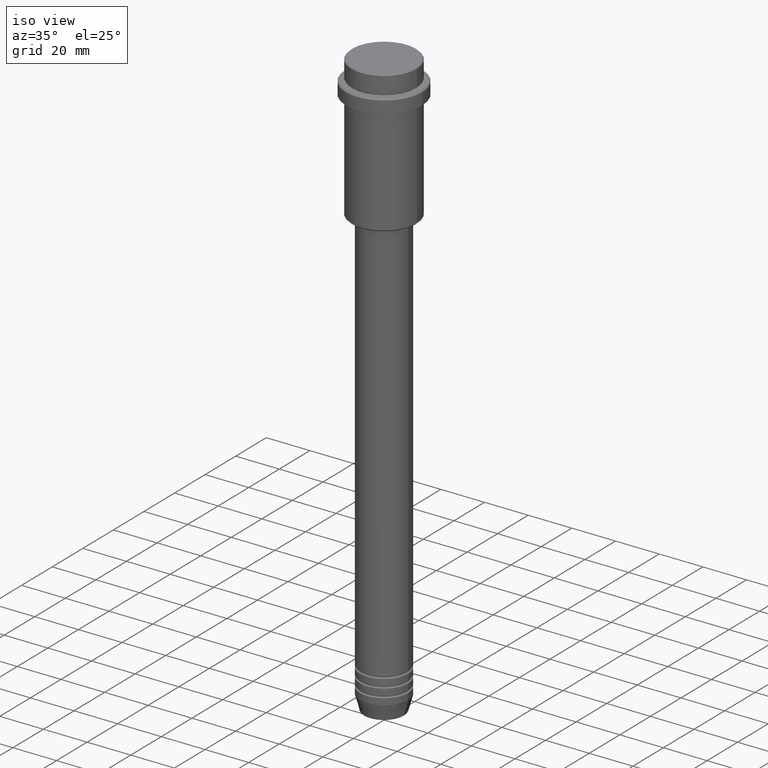
[diagram: clean part render]
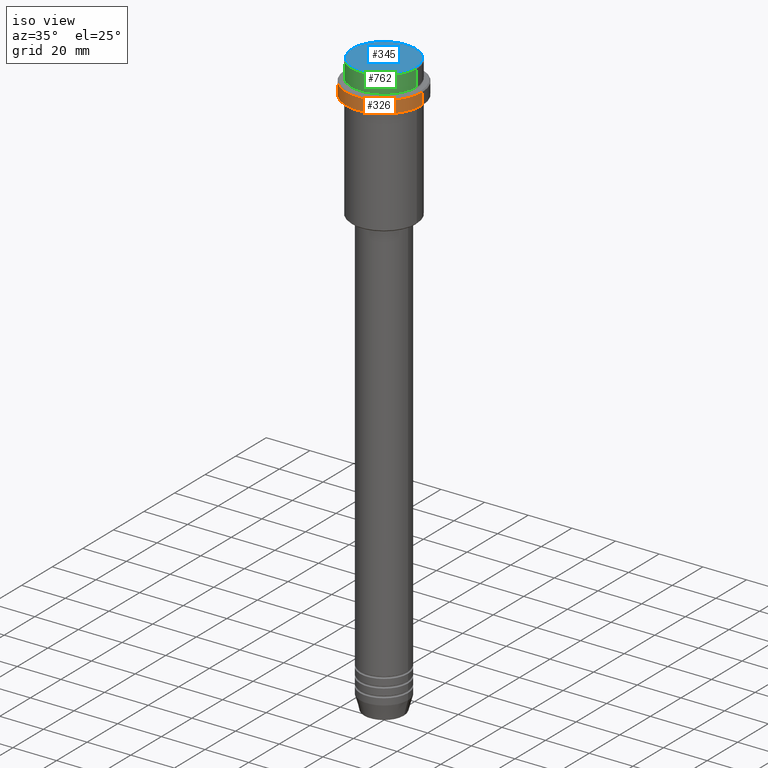
[diagram: same view with three faces highlighted in distinct colors, each labeled with its STEP entity id]
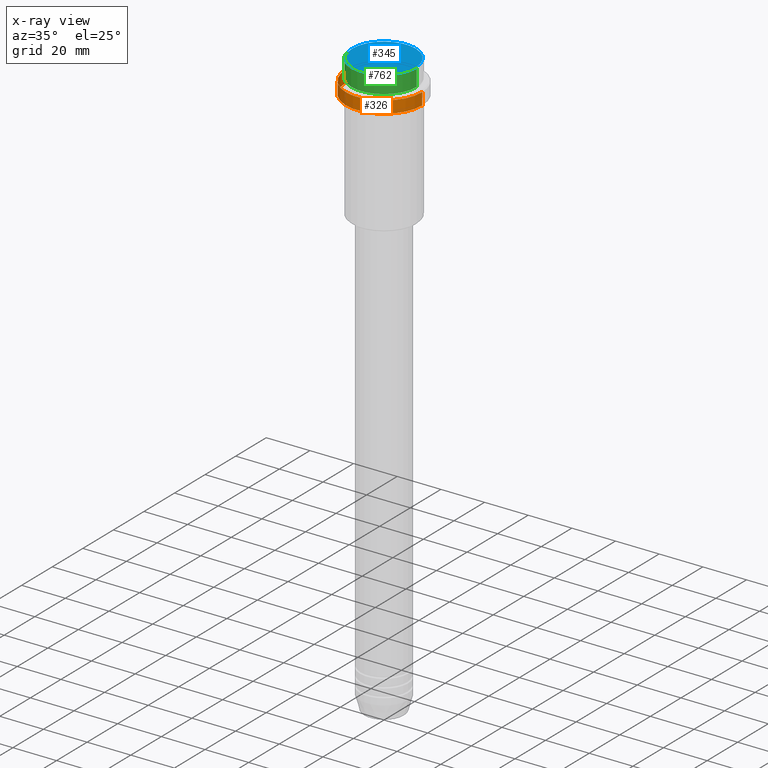
[diagram: x-ray of the same camera — body ghosted, the three highlighted faces saturated]
A machine part, iso view with three faces highlighted in distinct colors.
The next image is the same camera in x-ray (body ghosted, the three faces saturated) — at least one of them is partly hidden behind the body in this view.
Their STEP definitions:

[orange] entity #326 — the highlighted cylindrical surface (partial cylindrical patch) has radius 17.5 mm, axis along (-0, -0, 1).
#55 = DIRECTION ( 'NONE',  ( -0.000000000000000000, -0.000000000000000000, 1.000000000000000000 ) ) ;
#93 = EDGE_CURVE ( 'NONE', #561, #241, #251, .T. ) ;
#194 = DIRECTION ( 'NONE',  ( 1.000000000000000000, 0.000000000000000000, 0.000000000000000000 ) ) ;
#241 = VERTEX_POINT ( 'NONE', #1209 ) ;
#245 = EDGE_LOOP ( 'NONE', ( #657, #869, #495, #1152 ) ) ;
#251 = CIRCLE ( 'NONE', #870, 17.50000000000000000 ) ;
#269 = CARTESIAN_POINT ( 'NONE',  ( 0.000000000000000000, 0.000000000000000000, 0.000000000000000000 ) ) ;
#326 = ADVANCED_FACE ( 'NONE', ( #1029 ), #490, .T. ) ;
#402 = DIRECTION ( 'NONE',  ( -0.000000000000000000, -0.000000000000000000, 1.000000000000000000 ) ) ;
#415 = CARTESIAN_POINT ( 'NONE',  ( -17.50000000000000000, 2.143131898507868248E-15, 0.000000000000000000 ) ) ;
#466 = CARTESIAN_POINT ( 'NONE',  ( -17.50000000000000000, 2.143131898507868248E-15, -15.00000000000000000 ) ) ;
#490 = CYLINDRICAL_SURFACE ( 'NONE', #1059, 17.50000000000000000 ) ;
#493 = LINE ( 'NONE', #1270, #729 ) ;
#495 = ORIENTED_EDGE ( 'NONE', *, *, #992, .T. ) ;
#505 = EDGE_CURVE ( 'NONE', #1228, #241, #1384, .T. ) ;
#535 = CARTESIAN_POINT ( 'NONE',  ( 0.000000000000000000, 0.000000000000000000, -9.500000000000026645 ) ) ;
#561 = VERTEX_POINT ( 'NONE', #603 ) ;
#572 = DIRECTION ( 'NONE',  ( 1.000000000000000000, 0.000000000000000000, 0.000000000000000000 ) ) ;
#603 = CARTESIAN_POINT ( 'NONE',  ( 17.50000000000000000, 0.000000000000000000, -9.500000000000026645 ) ) ;
#639 = DIRECTION ( 'NONE',  ( -0.000000000000000000, -0.000000000000000000, 1.000000000000000000 ) ) ;
#646 = CARTESIAN_POINT ( 'NONE',  ( 17.50000000000000000, 0.000000000000000000, -15.00000000000000000 ) ) ;
#657 = ORIENTED_EDGE ( 'NONE', *, *, #505, .F. ) ;
#720 = DIRECTION ( 'NONE',  ( 0.000000000000000000, 0.000000000000000000, -1.000000000000000000 ) ) ;
#729 = VECTOR ( 'NONE', #937, 1000.000000000000000 ) ;
#749 = VECTOR ( 'NONE', #402, 1000.000000000000000 ) ;
#832 = CIRCLE ( 'NONE', #1109, 17.50000000000000000 ) ;
#857 = DIRECTION ( 'NONE',  ( 1.000000000000000000, 0.000000000000000000, 0.000000000000000000 ) ) ;
#865 = CARTESIAN_POINT ( 'NONE',  ( 0.000000000000000000, 0.000000000000000000, -15.00000000000000000 ) ) ;
#869 = ORIENTED_EDGE ( 'NONE', *, *, #1095, .T. ) ;
#870 = AXIS2_PLACEMENT_3D ( 'NONE', #535, #720, #194 ) ;
#937 = DIRECTION ( 'NONE',  ( -0.000000000000000000, -0.000000000000000000, 1.000000000000000000 ) ) ;
#992 = EDGE_CURVE ( 'NONE', #1132, #561, #493, .T. ) ;
#1029 = FACE_OUTER_BOUND ( 'NONE', #245, .T. ) ;
#1059 = AXIS2_PLACEMENT_3D ( 'NONE', #269, #55, #572 ) ;
#1095 = EDGE_CURVE ( 'NONE', #1228, #1132, #832, .T. ) ;
#1109 = AXIS2_PLACEMENT_3D ( 'NONE', #865, #639, #857 ) ;
#1132 = VERTEX_POINT ( 'NONE', #646 ) ;
#1152 = ORIENTED_EDGE ( 'NONE', *, *, #93, .T. ) ;
#1209 = CARTESIAN_POINT ( 'NONE',  ( -17.50000000000000000, 2.143131898507868248E-15, -9.500000000000026645 ) ) ;
#1228 = VERTEX_POINT ( 'NONE', #466 ) ;
#1270 = CARTESIAN_POINT ( 'NONE',  ( 17.50000000000000000, 0.000000000000000000, 0.000000000000000000 ) ) ;
#1384 = LINE ( 'NONE', #415, #749 ) ;

[blue] entity #345 — the highlighted planar face has unit normal (0, -0, 1).
#3 = AXIS2_PLACEMENT_3D ( 'NONE', #475, #1258, #358 ) ;
#60 = CIRCLE ( 'NONE', #1232, 14.50000000000003908 ) ;
#81 = EDGE_CURVE ( 'NONE', #98, #801, #60, .T. ) ;
#98 = VERTEX_POINT ( 'NONE', #511 ) ;
#147 = EDGE_CURVE ( 'NONE', #801, #98, #1014, .T. ) ;
#345 = ADVANCED_FACE ( 'NONE', ( #462 ), #713, .T. ) ;
#358 = DIRECTION ( 'NONE',  ( 1.000000000000000000, 0.000000000000000000, 0.000000000000000000 ) ) ;
#462 = FACE_OUTER_BOUND ( 'NONE', #1151, .T. ) ;
#475 = CARTESIAN_POINT ( 'NONE',  ( 0.000000000000000000, 0.000000000000000000, 0.000000000000000000 ) ) ;
#511 = CARTESIAN_POINT ( 'NONE',  ( 14.50000000000003908, 1.806354028742348168E-15, 0.000000000000000000 ) ) ;
#600 = ORIENTED_EDGE ( 'NONE', *, *, #81, .T. ) ;
#678 = CARTESIAN_POINT ( 'NONE',  ( -14.50000000000003908, 0.000000000000000000, 0.000000000000000000 ) ) ;
#713 = PLANE ( 'NONE',  #3 ) ;
#734 = DIRECTION ( 'NONE',  ( 1.000000000000000000, 0.000000000000000000, 0.000000000000000000 ) ) ;
#801 = VERTEX_POINT ( 'NONE', #678 ) ;
#884 = ORIENTED_EDGE ( 'NONE', *, *, #147, .T. ) ;
#963 = DIRECTION ( 'NONE',  ( 1.000000000000000000, 0.000000000000000000, 0.000000000000000000 ) ) ;
#1014 = CIRCLE ( 'NONE', #1079, 14.50000000000003908 ) ;
#1063 = CARTESIAN_POINT ( 'NONE',  ( 0.000000000000000000, 0.000000000000000000, 0.000000000000000000 ) ) ;
#1079 = AXIS2_PLACEMENT_3D ( 'NONE', #1380, #1173, #963 ) ;
#1151 = EDGE_LOOP ( 'NONE', ( #884, #600 ) ) ;
#1173 = DIRECTION ( 'NONE',  ( -0.000000000000000000, -0.000000000000000000, 1.000000000000000000 ) ) ;
#1232 = AXIS2_PLACEMENT_3D ( 'NONE', #1063, #1266, #734 ) ;
#1258 = DIRECTION ( 'NONE',  ( 0.000000000000000000, -0.000000000000000000, 1.000000000000000000 ) ) ;
#1266 = DIRECTION ( 'NONE',  ( -0.000000000000000000, -0.000000000000000000, 1.000000000000000000 ) ) ;
#1380 = CARTESIAN_POINT ( 'NONE',  ( 0.000000000000000000, 0.000000000000000000, 0.000000000000000000 ) ) ;

[green] entity #762 — the highlighted cylindrical surface (partial cylindrical patch) has radius 15 mm, axis along (-0, -0, 1).
#20 = VERTEX_POINT ( 'NONE', #300 ) ;
#39 = CARTESIAN_POINT ( 'NONE',  ( -15.00000000000000000, 1.836970198721029589E-15, -7.999999999999998224 ) ) ;
#71 = CARTESIAN_POINT ( 'NONE',  ( 15.00000000000000000, 0.000000000000000000, -0.4999999999999831246 ) ) ;
#85 = LINE ( 'NONE', #1276, #1394 ) ;
#103 = DIRECTION ( 'NONE',  ( 0.000000000000000000, 0.000000000000000000, -1.000000000000000000 ) ) ;
#134 = DIRECTION ( 'NONE',  ( 1.000000000000000000, 0.000000000000000000, 0.000000000000000000 ) ) ;
#192 = DIRECTION ( 'NONE',  ( -0.000000000000000000, -0.000000000000000000, 1.000000000000000000 ) ) ;
#197 = EDGE_CURVE ( 'NONE', #926, #20, #383, .T. ) ;
#218 = CARTESIAN_POINT ( 'NONE',  ( 15.00000000000000000, 0.000000000000000000, 0.000000000000000000 ) ) ;
#268 = CARTESIAN_POINT ( 'NONE',  ( 0.000000000000000000, 0.000000000000000000, 0.000000000000000000 ) ) ;
#300 = CARTESIAN_POINT ( 'NONE',  ( -15.00000000000000000, 1.836970198721029589E-15, -0.4999999999999831246 ) ) ;
#321 = VECTOR ( 'NONE', #652, 1000.000000000000000 ) ;
#332 = VERTEX_POINT ( 'NONE', #39 ) ;
#383 = CIRCLE ( 'NONE', #611, 15.00000000000000000 ) ;
#461 = EDGE_CURVE ( 'NONE', #332, #20, #85, .T. ) ;
#467 = DIRECTION ( 'NONE',  ( -0.000000000000000000, -0.000000000000000000, 1.000000000000000000 ) ) ;
#509 = CARTESIAN_POINT ( 'NONE',  ( 0.000000000000000000, 0.000000000000000000, -7.999999999999998224 ) ) ;
#527 = DIRECTION ( 'NONE',  ( -0.000000000000000000, -0.000000000000000000, 1.000000000000000000 ) ) ;
#568 = CARTESIAN_POINT ( 'NONE',  ( 15.00000000000000000, 0.000000000000000000, -7.999999999999998224 ) ) ;
#591 = CIRCLE ( 'NONE', #1106, 15.00000000000000000 ) ;
#598 = FACE_OUTER_BOUND ( 'NONE', #1261, .T. ) ;
#611 = AXIS2_PLACEMENT_3D ( 'NONE', #1101, #103, #1006 ) ;
#628 = ORIENTED_EDGE ( 'NONE', *, *, #197, .T. ) ;
#652 = DIRECTION ( 'NONE',  ( -0.000000000000000000, -0.000000000000000000, 1.000000000000000000 ) ) ;
#752 = AXIS2_PLACEMENT_3D ( 'NONE', #268, #467, #134 ) ;
#757 = ORIENTED_EDGE ( 'NONE', *, *, #915, .T. ) ;
#761 = LINE ( 'NONE', #218, #321 ) ;
#762 = ADVANCED_FACE ( 'NONE', ( #598 ), #1146, .T. ) ;
#794 = ORIENTED_EDGE ( 'NONE', *, *, #1053, .T. ) ;
#915 = EDGE_CURVE ( 'NONE', #332, #1210, #591, .T. ) ;
#926 = VERTEX_POINT ( 'NONE', #71 ) ;
#1006 = DIRECTION ( 'NONE',  ( 1.000000000000000000, 0.000000000000000000, 0.000000000000000000 ) ) ;
#1053 = EDGE_CURVE ( 'NONE', #1210, #926, #761, .T. ) ;
#1101 = CARTESIAN_POINT ( 'NONE',  ( 0.000000000000000000, 0.000000000000000000, -0.4999999999999831246 ) ) ;
#1106 = AXIS2_PLACEMENT_3D ( 'NONE', #509, #192, #1159 ) ;
#1146 = CYLINDRICAL_SURFACE ( 'NONE', #752, 15.00000000000000000 ) ;
#1159 = DIRECTION ( 'NONE',  ( 1.000000000000000000, 0.000000000000000000, 0.000000000000000000 ) ) ;
#1210 = VERTEX_POINT ( 'NONE', #568 ) ;
#1261 = EDGE_LOOP ( 'NONE', ( #1337, #757, #794, #628 ) ) ;
#1276 = CARTESIAN_POINT ( 'NONE',  ( -15.00000000000000000, 1.836970198721029589E-15, 0.000000000000000000 ) ) ;
#1337 = ORIENTED_EDGE ( 'NONE', *, *, #461, .F. ) ;
#1394 = VECTOR ( 'NONE', #527, 1000.000000000000000 ) ;